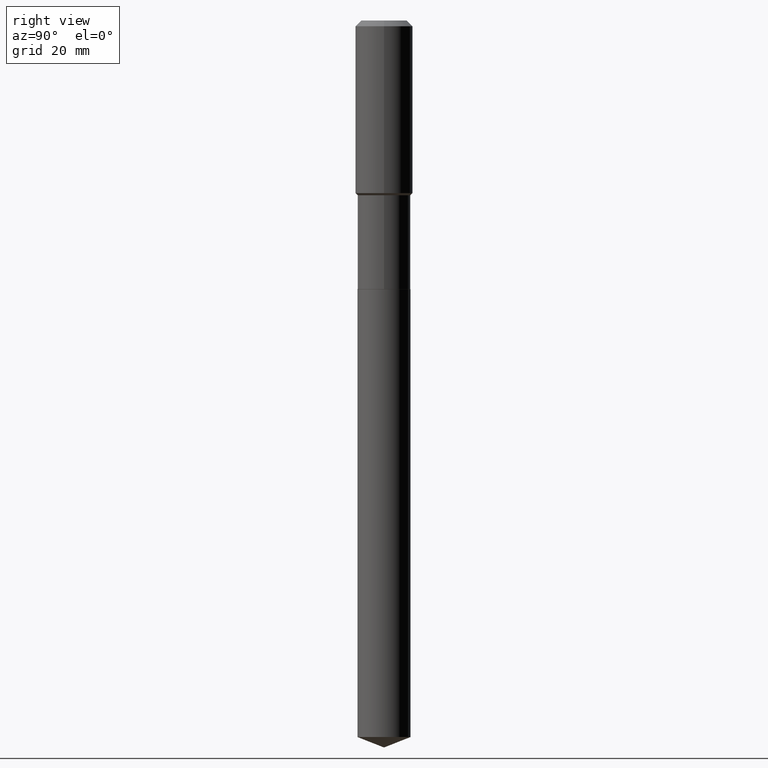
[diagram: clean part render]
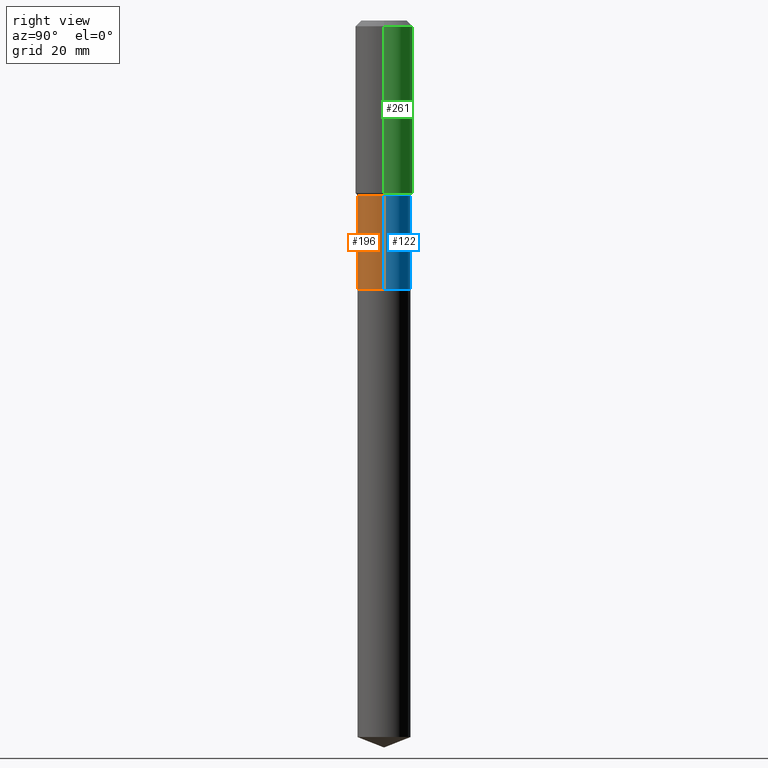
[diagram: same view with three faces highlighted in distinct colors, each labeled with its STEP entity id]
A machine part, right view with three faces highlighted in distinct colors.
Their STEP definitions:

[orange] entity #196 — the highlighted cylindrical surface (edge-blend (fillet) strip) has radius 7.4003 mm, axis along (-0, 0, 1).
#12 = VERTEX_POINT ( 'NONE', #334 ) ;
#31 = CARTESIAN_POINT ( 'NONE',  ( 4.696522842278555874E-29, -6.705389911248262631E-15, -1.920500000000000540 ) ) ;
#42 = EDGE_CURVE ( 'NONE', #276, #462, #188, .T. ) ;
#44 = EDGE_CURVE ( 'NONE', #313, #12, #109, .T. ) ;
#51 = CARTESIAN_POINT ( 'NONE',  ( -0.2913499999999998313, -6.436304299253447379E-15, -1.920500000000000540 ) ) ;
#91 = CARTESIAN_POINT ( 'NONE',  ( 7.219513009619761960E-29, -1.030755120853273430E-14, -2.952200000000000379 ) ) ;
#95 = DIRECTION ( 'NONE',  ( 1.000000000000000000, -6.982962677686269077E-15, 0.000000000000000000 ) ) ;
#101 = CIRCLE ( 'NONE', #323, 0.2913499999999998313 ) ;
#109 = LINE ( 'NONE', #414, #473 ) ;
#115 = ORIENTED_EDGE ( 'NONE', *, *, #182, .T. ) ;
#118 = CYLINDRICAL_SURFACE ( 'NONE', #207, 0.2913499999999999424 ) ;
#130 = DIRECTION ( 'NONE',  ( -2.445468806185136597E-29, 3.491481338843145583E-15, 1.000000000000000000 ) ) ;
#131 = ORIENTED_EDGE ( 'NONE', *, *, #212, .F. ) ;
#142 = CARTESIAN_POINT ( 'NONE',  ( -0.2913499999999999979, -6.436304299253446590E-15, -2.952200000000000379 ) ) ;
#161 = ORIENTED_EDGE ( 'NONE', *, *, #42, .F. ) ;
#182 = EDGE_CURVE ( 'NONE', #276, #313, #238, .T. ) ;
#188 = LINE ( 'NONE', #307, #335 ) ;
#189 = DIRECTION ( 'NONE',  ( -2.445468806185136877E-29, 3.491481338843145188E-15, 1.000000000000000000 ) ) ;
#196 = ADVANCED_FACE ( 'NONE', ( #360 ), #118, .T. ) ;
#198 = EDGE_LOOP ( 'NONE', ( #161, #115, #375, #131 ) ) ;
#203 = DIRECTION ( 'NONE',  ( -2.445468806185136597E-29, 3.491481338843145583E-15, 1.000000000000000000 ) ) ;
#207 = AXIS2_PLACEMENT_3D ( 'NONE', #209, #203, #352 ) ;
#209 = CARTESIAN_POINT ( 'NONE',  ( 0.000000000000000000, 0.000000000000000000, 0.000000000000000000 ) ) ;
#212 = EDGE_CURVE ( 'NONE', #462, #12, #101, .T. ) ;
#238 = CIRCLE ( 'NONE', #295, 0.2913499999999999979 ) ;
#276 = VERTEX_POINT ( 'NONE', #142 ) ;
#287 = DIRECTION ( 'NONE',  ( -2.445468806185136597E-29, 3.491481338843145583E-15, 1.000000000000000000 ) ) ;
#295 = AXIS2_PLACEMENT_3D ( 'NONE', #91, #287, #434 ) ;
#307 = CARTESIAN_POINT ( 'NONE',  ( -0.2913499999999999424, 2.070166260637051482E-15, -1.433131738545766370E-29 ) ) ;
#313 = VERTEX_POINT ( 'NONE', #361 ) ;
#323 = AXIS2_PLACEMENT_3D ( 'NONE', #31, #130, #95 ) ;
#334 = CARTESIAN_POINT ( 'NONE',  ( 0.2913499999999998313, -8.739876087392156255E-15, -1.920500000000000540 ) ) ;
#335 = VECTOR ( 'NONE', #419, 39.37007874015748143 ) ;
#352 = DIRECTION ( 'NONE',  ( 1.000000000000000000, -6.982962677686265922E-15, 4.876176775795935232E-29 ) ) ;
#360 = FACE_OUTER_BOUND ( 'NONE', #198, .T. ) ;
#361 = CARTESIAN_POINT ( 'NONE',  ( 0.2913499999999999979, -1.234203738467662792E-14, -2.952200000000000379 ) ) ;
#375 = ORIENTED_EDGE ( 'NONE', *, *, #44, .T. ) ;
#414 = CARTESIAN_POINT ( 'NONE',  ( 0.2913499999999999424, -2.034486176143893229E-15, 1.420674103628145491E-29 ) ) ;
#419 = DIRECTION ( 'NONE',  ( -2.445468806185136877E-29, 3.491481338843145188E-15, 1.000000000000000000 ) ) ;
#434 = DIRECTION ( 'NONE',  ( 1.000000000000000000, -6.982962677686267499E-15, 0.000000000000000000 ) ) ;
#462 = VERTEX_POINT ( 'NONE', #51 ) ;
#473 = VECTOR ( 'NONE', #189, 39.37007874015748143 ) ;

[blue] entity #122 — the highlighted cylindrical surface (edge-blend (fillet) strip) has radius 7.4003 mm, axis along (-0, 0, 1).
#12 = VERTEX_POINT ( 'NONE', #334 ) ;
#19 = CIRCLE ( 'NONE', #194, 0.2913499999999999979 ) ;
#25 = DIRECTION ( 'NONE',  ( -2.445468806185136597E-29, 3.491481338843145583E-15, 1.000000000000000000 ) ) ;
#42 = EDGE_CURVE ( 'NONE', #276, #462, #188, .T. ) ;
#44 = EDGE_CURVE ( 'NONE', #313, #12, #109, .T. ) ;
#51 = CARTESIAN_POINT ( 'NONE',  ( -0.2913499999999998313, -6.436304299253447379E-15, -1.920500000000000540 ) ) ;
#59 = ORIENTED_EDGE ( 'NONE', *, *, #461, .F. ) ;
#65 = DIRECTION ( 'NONE',  ( 1.000000000000000000, -6.982962677686267499E-15, 0.000000000000000000 ) ) ;
#71 = CIRCLE ( 'NONE', #440, 0.2913499999999998313 ) ;
#72 = ORIENTED_EDGE ( 'NONE', *, *, #406, .T. ) ;
#109 = LINE ( 'NONE', #414, #473 ) ;
#122 = ADVANCED_FACE ( 'NONE', ( #427 ), #205, .T. ) ;
#127 = CARTESIAN_POINT ( 'NONE',  ( 0.000000000000000000, 0.000000000000000000, 0.000000000000000000 ) ) ;
#142 = CARTESIAN_POINT ( 'NONE',  ( -0.2913499999999999979, -6.436304299253446590E-15, -2.952200000000000379 ) ) ;
#188 = LINE ( 'NONE', #307, #335 ) ;
#189 = DIRECTION ( 'NONE',  ( -2.445468806185136877E-29, 3.491481338843145188E-15, 1.000000000000000000 ) ) ;
#194 = AXIS2_PLACEMENT_3D ( 'NONE', #303, #249, #65 ) ;
#205 = CYLINDRICAL_SURFACE ( 'NONE', #397, 0.2913499999999999424 ) ;
#227 = CARTESIAN_POINT ( 'NONE',  ( 4.696522842278555874E-29, -6.705389911248262631E-15, -1.920500000000000540 ) ) ;
#242 = DIRECTION ( 'NONE',  ( -2.445468806185136597E-29, 3.491481338843145583E-15, 1.000000000000000000 ) ) ;
#249 = DIRECTION ( 'NONE',  ( -2.445468806185136597E-29, 3.491481338843145583E-15, 1.000000000000000000 ) ) ;
#276 = VERTEX_POINT ( 'NONE', #142 ) ;
#303 = CARTESIAN_POINT ( 'NONE',  ( 7.219513009619761960E-29, -1.030755120853273430E-14, -2.952200000000000379 ) ) ;
#307 = CARTESIAN_POINT ( 'NONE',  ( -0.2913499999999999424, 2.070166260637051482E-15, -1.433131738545766370E-29 ) ) ;
#313 = VERTEX_POINT ( 'NONE', #361 ) ;
#321 = EDGE_LOOP ( 'NONE', ( #72, #382, #59, #388 ) ) ;
#334 = CARTESIAN_POINT ( 'NONE',  ( 0.2913499999999998313, -8.739876087392156255E-15, -1.920500000000000540 ) ) ;
#335 = VECTOR ( 'NONE', #419, 39.37007874015748143 ) ;
#344 = DIRECTION ( 'NONE',  ( 1.000000000000000000, -6.982962677686269077E-15, 0.000000000000000000 ) ) ;
#361 = CARTESIAN_POINT ( 'NONE',  ( 0.2913499999999999979, -1.234203738467662792E-14, -2.952200000000000379 ) ) ;
#382 = ORIENTED_EDGE ( 'NONE', *, *, #42, .T. ) ;
#388 = ORIENTED_EDGE ( 'NONE', *, *, #44, .F. ) ;
#389 = DIRECTION ( 'NONE',  ( 1.000000000000000000, -6.982962677686265922E-15, 4.876176775795935232E-29 ) ) ;
#397 = AXIS2_PLACEMENT_3D ( 'NONE', #127, #25, #389 ) ;
#406 = EDGE_CURVE ( 'NONE', #313, #276, #19, .T. ) ;
#414 = CARTESIAN_POINT ( 'NONE',  ( 0.2913499999999999424, -2.034486176143893229E-15, 1.420674103628145491E-29 ) ) ;
#419 = DIRECTION ( 'NONE',  ( -2.445468806185136877E-29, 3.491481338843145188E-15, 1.000000000000000000 ) ) ;
#427 = FACE_OUTER_BOUND ( 'NONE', #321, .T. ) ;
#440 = AXIS2_PLACEMENT_3D ( 'NONE', #227, #242, #344 ) ;
#461 = EDGE_CURVE ( 'NONE', #12, #462, #71, .T. ) ;
#462 = VERTEX_POINT ( 'NONE', #51 ) ;
#473 = VECTOR ( 'NONE', #189, 39.37007874015748143 ) ;

[green] entity #261 — the highlighted cylindrical surface (edge-blend (fillet) strip) has radius 7.9997 mm, axis along (-0, 0, 1).
#6 = LINE ( 'NONE', #376, #258 ) ;
#36 = CARTESIAN_POINT ( 'NONE',  ( 0.000000000000000000, 0.000000000000000000, 0.000000000000000000 ) ) ;
#61 = DIRECTION ( 'NONE',  ( 1.000000000000000000, -6.982962677686266711E-15, 0.000000000000000000 ) ) ;
#66 = FACE_OUTER_BOUND ( 'NONE', #164, .T. ) ;
#67 = CIRCLE ( 'NONE', #105, 0.3149500000000000077 ) ;
#73 = CARTESIAN_POINT ( 'NONE',  ( 0.3149500000000000077, -2.419212504871020909E-15, -0.06299000000000036514 ) ) ;
#88 = VERTEX_POINT ( 'NONE', #73 ) ;
#98 = LINE ( 'NONE', #243, #129 ) ;
#103 = DIRECTION ( 'NONE',  ( 1.000000000000000000, -6.982962677686264344E-15, 0.000000000000000000 ) ) ;
#105 = AXIS2_PLACEMENT_3D ( 'NONE', #394, #387, #61 ) ;
#107 = DIRECTION ( 'NONE',  ( 1.000000000000000000, -6.982962677686265922E-15, 4.876176775795935232E-29 ) ) ;
#113 = DIRECTION ( 'NONE',  ( -2.445468806185136877E-29, 3.491481338843145188E-15, 1.000000000000000000 ) ) ;
#125 = VERTEX_POINT ( 'NONE', #281 ) ;
#129 = VECTOR ( 'NONE', #234, 39.37007874015748143 ) ;
#136 = DIRECTION ( 'NONE',  ( -2.445468806185136597E-29, 3.491481338843145583E-15, 1.000000000000000000 ) ) ;
#137 = CIRCLE ( 'NONE', #413, 0.3149500000000002298 ) ;
#151 = VERTEX_POINT ( 'NONE', #173 ) ;
#157 = ORIENTED_EDGE ( 'NONE', *, *, #214, .F. ) ;
#164 = EDGE_LOOP ( 'NONE', ( #314, #481, #339, #157 ) ) ;
#173 = CARTESIAN_POINT ( 'NONE',  ( -0.3149500000000000077, -1.183605334316210605E-15, -0.06299000000000036514 ) ) ;
#187 = CARTESIAN_POINT ( 'NONE',  ( -0.3149500000000002298, -4.385136605375126945E-15, -1.896900000000000253 ) ) ;
#214 = EDGE_CURVE ( 'NONE', #125, #88, #98, .T. ) ;
#216 = EDGE_CURVE ( 'NONE', #88, #151, #67, .T. ) ;
#219 = DIRECTION ( 'NONE',  ( -2.445468806185136597E-29, 3.491481338843145583E-15, 1.000000000000000000 ) ) ;
#234 = DIRECTION ( 'NONE',  ( -2.445468806185136877E-29, 3.491481338843145188E-15, 1.000000000000000000 ) ) ;
#243 = CARTESIAN_POINT ( 'NONE',  ( 0.3149500000000001743, -2.199284095337290660E-15, 1.535751875536930690E-29 ) ) ;
#258 = VECTOR ( 'NONE', #113, 39.37007874015748143 ) ;
#261 = ADVANCED_FACE ( 'NONE', ( #66 ), #480, .T. ) ;
#281 = CARTESIAN_POINT ( 'NONE',  ( 0.3149500000000002298, -8.822275046988854378E-15, -1.896900000000000253 ) ) ;
#314 = ORIENTED_EDGE ( 'NONE', *, *, #338, .T. ) ;
#338 = EDGE_CURVE ( 'NONE', #125, #453, #137, .T. ) ;
#339 = ORIENTED_EDGE ( 'NONE', *, *, #216, .F. ) ;
#369 = CARTESIAN_POINT ( 'NONE',  ( 4.638809778452586070E-29, -6.622990951651563719E-15, -1.896900000000000253 ) ) ;
#376 = CARTESIAN_POINT ( 'NONE',  ( -0.3149500000000001743, 2.237854346276436774E-15, -1.549218606675783237E-29 ) ) ;
#387 = DIRECTION ( 'NONE',  ( -2.445468806185136597E-29, 3.491481338843145583E-15, 1.000000000000000000 ) ) ;
#394 = CARTESIAN_POINT ( 'NONE',  ( 1.540400801016026329E-30, -2.199284095337310135E-16, -0.06299000000000036514 ) ) ;
#407 = AXIS2_PLACEMENT_3D ( 'NONE', #36, #219, #107 ) ;
#413 = AXIS2_PLACEMENT_3D ( 'NONE', #369, #136, #103 ) ;
#439 = EDGE_CURVE ( 'NONE', #453, #151, #6, .T. ) ;
#453 = VERTEX_POINT ( 'NONE', #187 ) ;
#480 = CYLINDRICAL_SURFACE ( 'NONE', #407, 0.3149500000000001743 ) ;
#481 = ORIENTED_EDGE ( 'NONE', *, *, #439, .T. ) ;